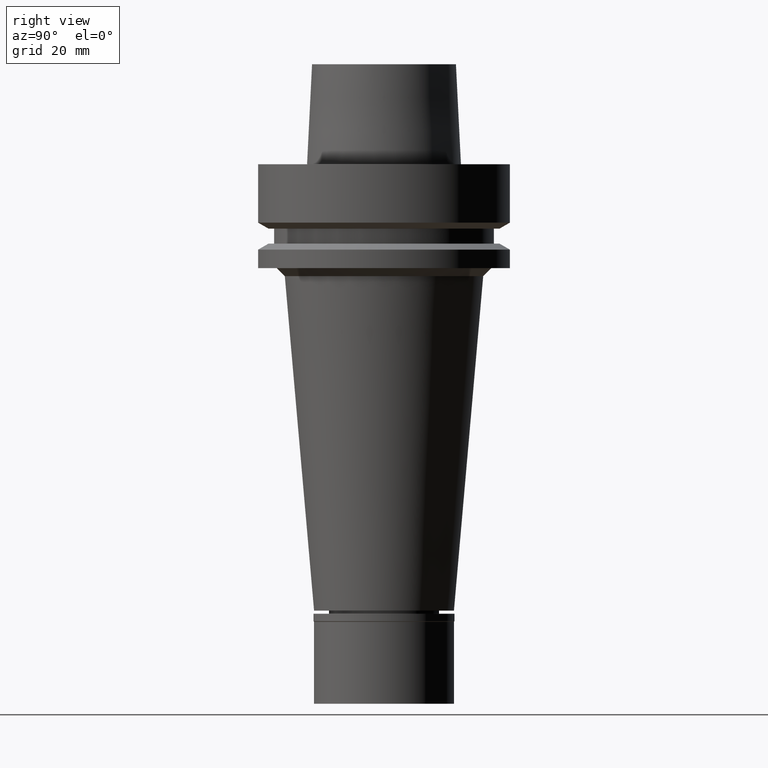
[diagram: clean part render]
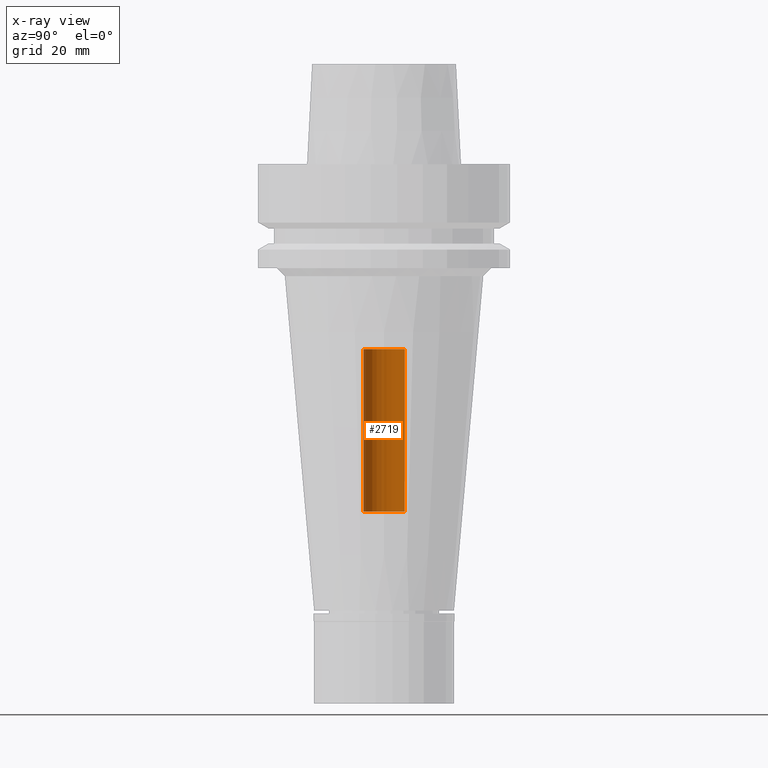
[diagram: x-ray — body ghosted, one internal face saturated and labeled with its STEP entity id]
A machine part, right view, then the same camera in x-ray: the body is ghosted and one INTERNAL B-rep face — a face not visible from any outside direction — is saturated and labeled: STEP entity #2719.
In plain terms, the highlighted cylindrical surface (edge-blend (fillet) strip) has radius 5.2 mm, axis along (0, 0, 1).
Its self-contained STEP definition (entity closure, byte-faithful):
#51 = AXIS2_PLACEMENT_3D ( 'NONE', #2694, #2193, #2007 ) ;
#60 = DIRECTION ( 'NONE',  ( 0.0000000000000000000, 0.0000000000000000000, 1.000000000000000000 ) ) ;
#108 = DIRECTION ( 'NONE',  ( 0.0000000000000000000, 1.000000000000000000, 0.0000000000000000000 ) ) ;
#112 = ORIENTED_EDGE ( 'NONE', *, *, #516, .T. ) ;
#468 = CIRCLE ( 'NONE', #51, 5.200000000000000178 ) ;
#484 = EDGE_CURVE ( 'NONE', #689, #1589, #613, .T. ) ;
#516 = EDGE_CURVE ( 'NONE', #689, #1354, #468, .T. ) ;
#519 = CARTESIAN_POINT ( 'NONE',  ( 0.0000000000000000000, 0.0000000000000000000, -135.9650000000000034 ) ) ;
#563 = CARTESIAN_POINT ( 'NONE',  ( 0.0000000000000000000, -5.200000000000000178, -87.00000000000000000 ) ) ;
#571 = CARTESIAN_POINT ( 'NONE',  ( 0.0000000000000000000, 5.200000000000000178, -87.00000000000000000 ) ) ;
#613 = LINE ( 'NONE', #677, #2735 ) ;
#677 = CARTESIAN_POINT ( 'NONE',  ( 0.0000000000000000000, -5.200000000000000178, -87.00000000000000000 ) ) ;
#679 = EDGE_LOOP ( 'NONE', ( #1614, #1562, #112, #1761 ) ) ;
#689 = VERTEX_POINT ( 'NONE', #563 ) ;
#753 = LINE ( 'NONE', #2517, #2120 ) ;
#755 = VERTEX_POINT ( 'NONE', #857 ) ;
#857 = CARTESIAN_POINT ( 'NONE',  ( 0.0000000000000000000, 5.200000000000000178, -46.30000000000000426 ) ) ;
#864 = CIRCLE ( 'NONE', #2850, 5.200000000000000178 ) ;
#1172 = FACE_OUTER_BOUND ( 'NONE', #679, .T. ) ;
#1354 = VERTEX_POINT ( 'NONE', #571 ) ;
#1379 = EDGE_CURVE ( 'NONE', #1354, #755, #753, .T. ) ;
#1501 = DIRECTION ( 'NONE',  ( 0.0000000000000000000, 1.000000000000000000, 0.0000000000000000000 ) ) ;
#1562 = ORIENTED_EDGE ( 'NONE', *, *, #484, .F. ) ;
#1589 = VERTEX_POINT ( 'NONE', #2379 ) ;
#1614 = ORIENTED_EDGE ( 'NONE', *, *, #2319, .T. ) ;
#1700 = AXIS2_PLACEMENT_3D ( 'NONE', #519, #60, #108 ) ;
#1737 = DIRECTION ( 'NONE',  ( 0.0000000000000000000, 0.0000000000000000000, 1.000000000000000000 ) ) ;
#1761 = ORIENTED_EDGE ( 'NONE', *, *, #1379, .T. ) ;
#1784 = DIRECTION ( 'NONE',  ( 0.0000000000000000000, 0.0000000000000000000, 1.000000000000000000 ) ) ;
#2007 = DIRECTION ( 'NONE',  ( 0.0000000000000000000, -1.000000000000000000, 0.0000000000000000000 ) ) ;
#2051 = CYLINDRICAL_SURFACE ( 'NONE', #1700, 5.200000000000000178 ) ;
#2120 = VECTOR ( 'NONE', #2326, 1000.000000000000000 ) ;
#2193 = DIRECTION ( 'NONE',  ( 0.0000000000000000000, 0.0000000000000000000, -1.000000000000000000 ) ) ;
#2319 = EDGE_CURVE ( 'NONE', #755, #1589, #864, .T. ) ;
#2326 = DIRECTION ( 'NONE',  ( 0.0000000000000000000, 0.0000000000000000000, 1.000000000000000000 ) ) ;
#2379 = CARTESIAN_POINT ( 'NONE',  ( 0.0000000000000000000, -5.200000000000000178, -46.30000000000000426 ) ) ;
#2517 = CARTESIAN_POINT ( 'NONE',  ( 0.0000000000000000000, 5.200000000000000178, -87.00000000000000000 ) ) ;
#2611 = CARTESIAN_POINT ( 'NONE',  ( 0.0000000000000000000, 0.0000000000000000000, -46.30000000000000426 ) ) ;
#2694 = CARTESIAN_POINT ( 'NONE',  ( 0.0000000000000000000, 0.0000000000000000000, -87.00000000000000000 ) ) ;
#2719 = ADVANCED_FACE ( 'NONE', ( #1172 ), #2051, .F. ) ;
#2735 = VECTOR ( 'NONE', #1784, 1000.000000000000000 ) ;
#2850 = AXIS2_PLACEMENT_3D ( 'NONE', #2611, #1737, #1501 ) ;